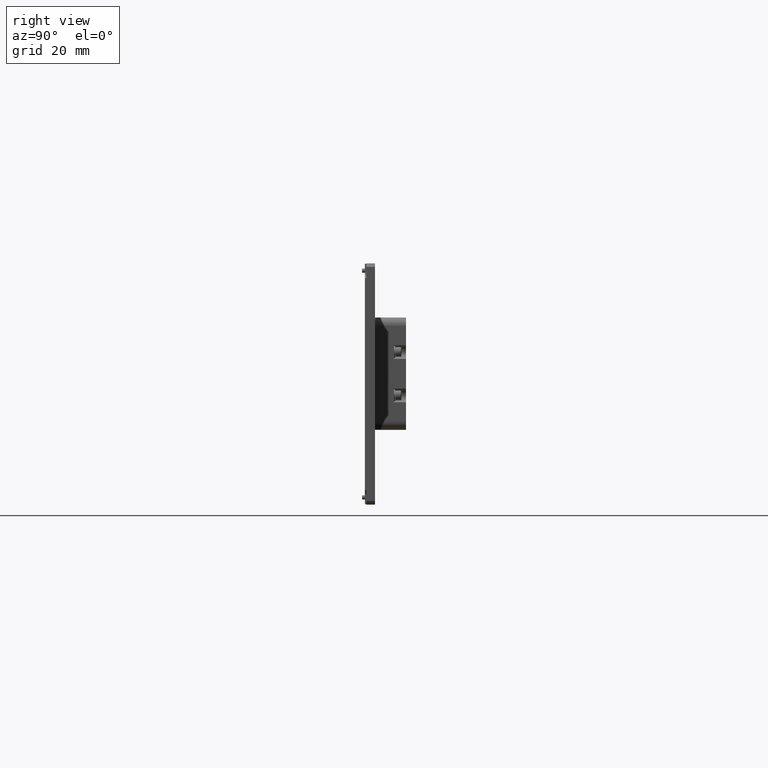
[diagram: clean part render]
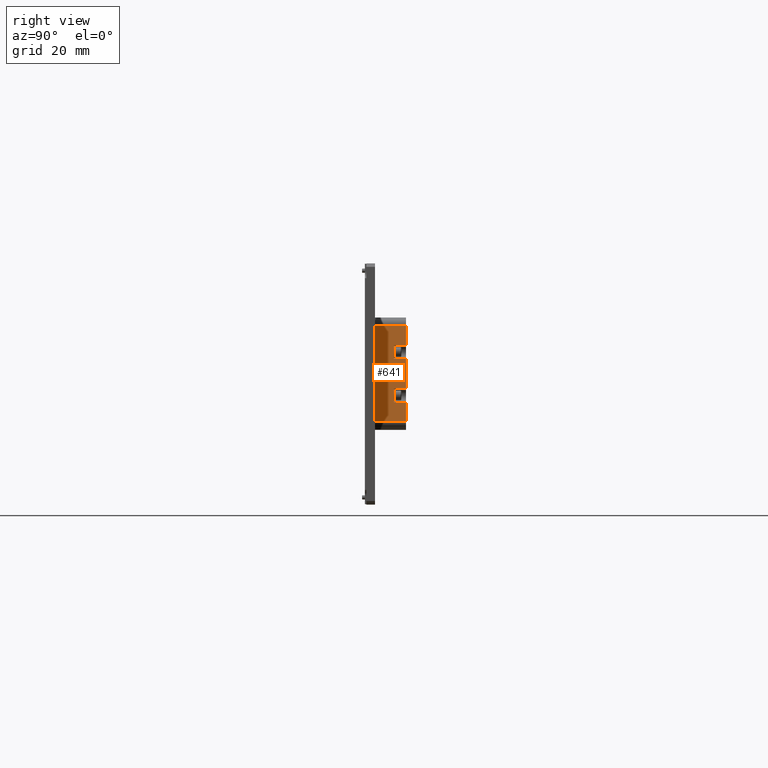
[diagram: same view with one face highlighted and labeled with its STEP entity id]
A machine part, right view. The second image highlights one B-rep face of the part: STEP entity #641.
In plain terms, the highlighted planar face has unit normal (-1, 0, 0).
Its self-contained STEP definition (entity closure, byte-faithful):
#64 = DIRECTION ( 'NONE',  ( 0.000000000000000000, 0.000000000000000000, -1.000000000000000000 ) ) ;
#153 = LINE ( 'NONE', #6526, #3528 ) ;
#337 = PLANE ( 'NONE',  #1272 ) ;
#433 = LINE ( 'NONE', #8999, #10978 ) ;
#641 = ADVANCED_FACE ( 'NONE', ( #2504 ), #337, .F. ) ;
#852 = EDGE_CURVE ( 'NONE', #1049, #2089, #5636, .T. ) ;
#860 = CARTESIAN_POINT ( 'NONE',  ( -2.084109450808238506, 25.84923224274894693, -1.365165189175196137 ) ) ;
#1049 = VERTEX_POINT ( 'NONE', #4984 ) ;
#1247 = VERTEX_POINT ( 'NONE', #10819 ) ;
#1272 = AXIS2_PLACEMENT_3D ( 'NONE', #7913, #11081, #1459 ) ;
#1431 = VECTOR ( 'NONE', #7466, 1000.000000000000000 ) ;
#1449 = VERTEX_POINT ( 'NONE', #3020 ) ;
#1459 = DIRECTION ( 'NONE',  ( 0.000000000000000000, 0.000000000000000000, 1.000000000000000000 ) ) ;
#1595 = ORIENTED_EDGE ( 'NONE', *, *, #3742, .F. ) ;
#1685 = ORIENTED_EDGE ( 'NONE', *, *, #12014, .T. ) ;
#1901 = DIRECTION ( 'NONE',  ( -0.000000000000000000, 1.000000000000000000, -0.000000000000000000 ) ) ;
#1993 = LINE ( 'NONE', #5298, #1431 ) ;
#2089 = VERTEX_POINT ( 'NONE', #9937 ) ;
#2395 = EDGE_CURVE ( 'NONE', #2089, #3918, #1993, .T. ) ;
#2414 = VERTEX_POINT ( 'NONE', #7255 ) ;
#2468 = LINE ( 'NONE', #3539, #2553 ) ;
#2475 = VECTOR ( 'NONE', #12268, 1000.000000000000000 ) ;
#2504 = FACE_OUTER_BOUND ( 'NONE', #9591, .T. ) ;
#2553 = VECTOR ( 'NONE', #6741, 1000.000000000000000 ) ;
#2599 = ORIENTED_EDGE ( 'NONE', *, *, #2804, .F. ) ;
#2651 = ORIENTED_EDGE ( 'NONE', *, *, #9235, .T. ) ;
#2804 = EDGE_CURVE ( 'NONE', #8750, #6802, #9758, .T. ) ;
#2952 = VECTOR ( 'NONE', #9874, 1000.000000000000000 ) ;
#2987 = ORIENTED_EDGE ( 'NONE', *, *, #12075, .T. ) ;
#3020 = CARTESIAN_POINT ( 'NONE',  ( -2.084109450808238506, 25.84923224274894693, 9.556834810824794246 ) ) ;
#3528 = VECTOR ( 'NONE', #4567, 1000.000000000000000 ) ;
#3539 = CARTESIAN_POINT ( 'NONE',  ( -2.084109450808238506, 25.84923224274894693, 14.63683481082479254 ) ) ;
#3669 = DIRECTION ( 'NONE',  ( -0.000000000000000000, 1.000000000000000000, -0.000000000000000000 ) ) ;
#3742 = EDGE_CURVE ( 'NONE', #1449, #8750, #433, .T. ) ;
#3918 = VERTEX_POINT ( 'NONE', #5195 ) ;
#4567 = DIRECTION ( 'NONE',  ( 0.000000000000000000, 0.000000000000000000, -1.000000000000000000 ) ) ;
#4623 = EDGE_CURVE ( 'NONE', #8903, #1449, #11352, .T. ) ;
#4887 = LINE ( 'NONE', #8334, #11540 ) ;
#4984 = CARTESIAN_POINT ( 'NONE',  ( -2.084109450808238506, 25.84923224274894693, -1.365165189175196137 ) ) ;
#5195 = CARTESIAN_POINT ( 'NONE',  ( -2.084109450808238506, 30.29423224274894721, -6.445165189175197540 ) ) ;
#5298 = CARTESIAN_POINT ( 'NONE',  ( -2.084109450808238506, 25.84923224274894693, -6.445165189175197540 ) ) ;
#5323 = EDGE_CURVE ( 'NONE', #8903, #9491, #2468, .T. ) ;
#5326 = LINE ( 'NONE', #12762, #9465 ) ;
#5636 = LINE ( 'NONE', #6816, #10225 ) ;
#5848 = EDGE_CURVE ( 'NONE', #1247, #2414, #4887, .T. ) ;
#6510 = CARTESIAN_POINT ( 'NONE',  ( -2.084109450808238506, 30.29423224274894721, 4.095834810824808159 ) ) ;
#6526 = CARTESIAN_POINT ( 'NONE',  ( -2.084109450808238506, 30.29423224274894721, 4.095834810824808159 ) ) ;
#6659 = CARTESIAN_POINT ( 'NONE',  ( -2.084109450808238506, 30.29423224274894721, 4.095834810824808159 ) ) ;
#6741 = DIRECTION ( 'NONE',  ( -0.000000000000000000, 1.000000000000000000, -0.000000000000000000 ) ) ;
#6802 = VERTEX_POINT ( 'NONE', #10546 ) ;
#6816 = CARTESIAN_POINT ( 'NONE',  ( -2.084109450808238506, 25.84923224274894693, -1.365165189175196137 ) ) ;
#7133 = VERTEX_POINT ( 'NONE', #8990 ) ;
#7255 = CARTESIAN_POINT ( 'NONE',  ( -2.084109450808238506, 30.29423224274894721, -13.55716518917519764 ) ) ;
#7370 = ORIENTED_EDGE ( 'NONE', *, *, #10511, .F. ) ;
#7443 = LINE ( 'NONE', #860, #12983 ) ;
#7466 = DIRECTION ( 'NONE',  ( -0.000000000000000000, 1.000000000000000000, -0.000000000000000000 ) ) ;
#7490 = DIRECTION ( 'NONE',  ( 0.000000000000000000, -1.000000000000000000, 0.000000000000000000 ) ) ;
#7913 = CARTESIAN_POINT ( 'NONE',  ( -2.084109450808238506, 30.29423224274894721, 4.095834810824808159 ) ) ;
#8264 = LINE ( 'NONE', #6659, #12395 ) ;
#8334 = CARTESIAN_POINT ( 'NONE',  ( -2.084109450808238506, 30.29423224274894721, -13.55716518917519764 ) ) ;
#8750 = VERTEX_POINT ( 'NONE', #9373 ) ;
#8903 = VERTEX_POINT ( 'NONE', #9913 ) ;
#8990 = CARTESIAN_POINT ( 'NONE',  ( -2.084109450808238506, 30.29423224274894721, 21.74883481082479619 ) ) ;
#8999 = CARTESIAN_POINT ( 'NONE',  ( -2.084109450808238506, 25.84923224274894693, 9.556834810824794246 ) ) ;
#9177 = DIRECTION ( 'NONE',  ( -0.000000000000000000, 1.000000000000000000, -0.000000000000000000 ) ) ;
#9235 = EDGE_CURVE ( 'NONE', #1049, #6802, #7443, .T. ) ;
#9373 = CARTESIAN_POINT ( 'NONE',  ( -2.084109450808238506, 30.29423224274894721, 9.556834810824794246 ) ) ;
#9465 = VECTOR ( 'NONE', #7490, 1000.000000000000000 ) ;
#9491 = VERTEX_POINT ( 'NONE', #10175 ) ;
#9523 = VECTOR ( 'NONE', #64, 1000.000000000000000 ) ;
#9591 = EDGE_LOOP ( 'NONE', ( #2599, #1595, #11610, #9829, #7370, #1685, #2987, #11242, #12603, #12487, #12408, #2651 ) ) ;
#9758 = LINE ( 'NONE', #6510, #9523 ) ;
#9829 = ORIENTED_EDGE ( 'NONE', *, *, #5323, .T. ) ;
#9874 = DIRECTION ( 'NONE',  ( 0.000000000000000000, 0.000000000000000000, -1.000000000000000000 ) ) ;
#9913 = CARTESIAN_POINT ( 'NONE',  ( -2.084109450808238506, 25.84923224274894693, 14.63683481082479254 ) ) ;
#9937 = CARTESIAN_POINT ( 'NONE',  ( -2.084109450808238506, 25.84923224274894693, -6.445165189175197540 ) ) ;
#10046 = CARTESIAN_POINT ( 'NONE',  ( -2.084109450808238506, 18.86423224274894750, 21.74883481082479619 ) ) ;
#10175 = CARTESIAN_POINT ( 'NONE',  ( -2.084109450808238506, 30.29423224274894721, 14.63683481082479254 ) ) ;
#10225 = VECTOR ( 'NONE', #12029, 1000.000000000000000 ) ;
#10511 = EDGE_CURVE ( 'NONE', #7133, #9491, #153, .T. ) ;
#10546 = CARTESIAN_POINT ( 'NONE',  ( -2.084109450808238506, 30.29423224274894721, -1.365165189175196137 ) ) ;
#10792 = LINE ( 'NONE', #11076, #2952 ) ;
#10819 = CARTESIAN_POINT ( 'NONE',  ( -2.084109450808238506, 18.86423224274894750, -13.55716518917519764 ) ) ;
#10953 = DIRECTION ( 'NONE',  ( 0.000000000000000000, 0.000000000000000000, -1.000000000000000000 ) ) ;
#10978 = VECTOR ( 'NONE', #3669, 1000.000000000000000 ) ;
#11076 = CARTESIAN_POINT ( 'NONE',  ( -2.084109450808238506, 18.86423224274894750, 4.095834810824808159 ) ) ;
#11081 = DIRECTION ( 'NONE',  ( -1.000000000000000000, 0.000000000000000000, 0.000000000000000000 ) ) ;
#11242 = ORIENTED_EDGE ( 'NONE', *, *, #5848, .T. ) ;
#11352 = LINE ( 'NONE', #13451, #2475 ) ;
#11540 = VECTOR ( 'NONE', #9177, 1000.000000000000000 ) ;
#11610 = ORIENTED_EDGE ( 'NONE', *, *, #4623, .F. ) ;
#12014 = EDGE_CURVE ( 'NONE', #7133, #13416, #5326, .T. ) ;
#12029 = DIRECTION ( 'NONE',  ( 0.000000000000000000, 0.000000000000000000, -1.000000000000000000 ) ) ;
#12075 = EDGE_CURVE ( 'NONE', #13416, #1247, #10792, .T. ) ;
#12268 = DIRECTION ( 'NONE',  ( -0.000000000000000000, -0.000000000000000000, -1.000000000000000000 ) ) ;
#12395 = VECTOR ( 'NONE', #10953, 1000.000000000000000 ) ;
#12408 = ORIENTED_EDGE ( 'NONE', *, *, #852, .F. ) ;
#12487 = ORIENTED_EDGE ( 'NONE', *, *, #2395, .F. ) ;
#12603 = ORIENTED_EDGE ( 'NONE', *, *, #13467, .F. ) ;
#12762 = CARTESIAN_POINT ( 'NONE',  ( -2.084109450808238506, 18.86423224274894750, 21.74883481082479619 ) ) ;
#12983 = VECTOR ( 'NONE', #1901, 1000.000000000000000 ) ;
#13416 = VERTEX_POINT ( 'NONE', #10046 ) ;
#13451 = CARTESIAN_POINT ( 'NONE',  ( -2.084109450808238506, 25.84923224274894693, 9.556834810824794246 ) ) ;
#13467 = EDGE_CURVE ( 'NONE', #3918, #2414, #8264, .T. ) ;